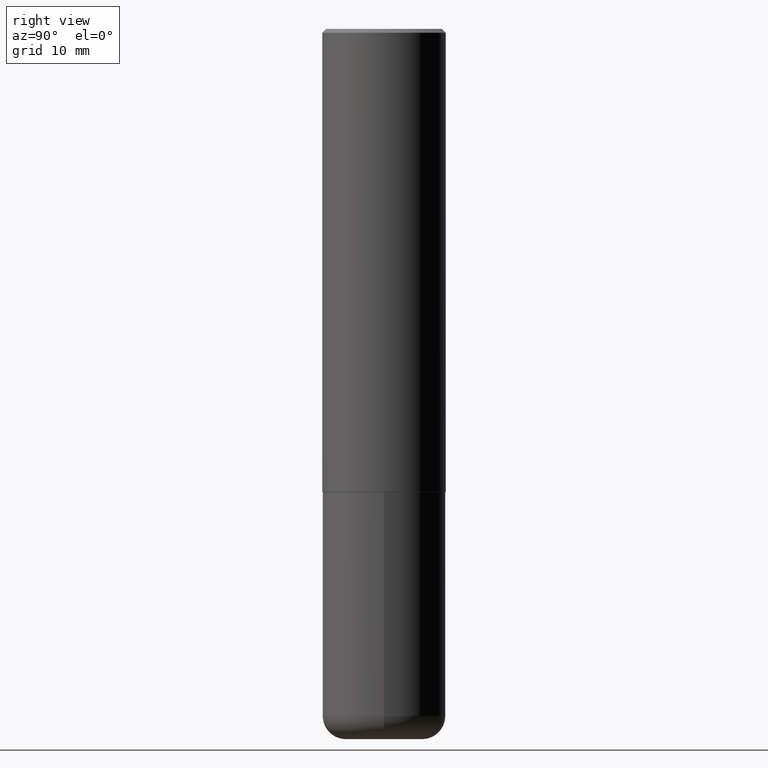
[diagram: clean part render]
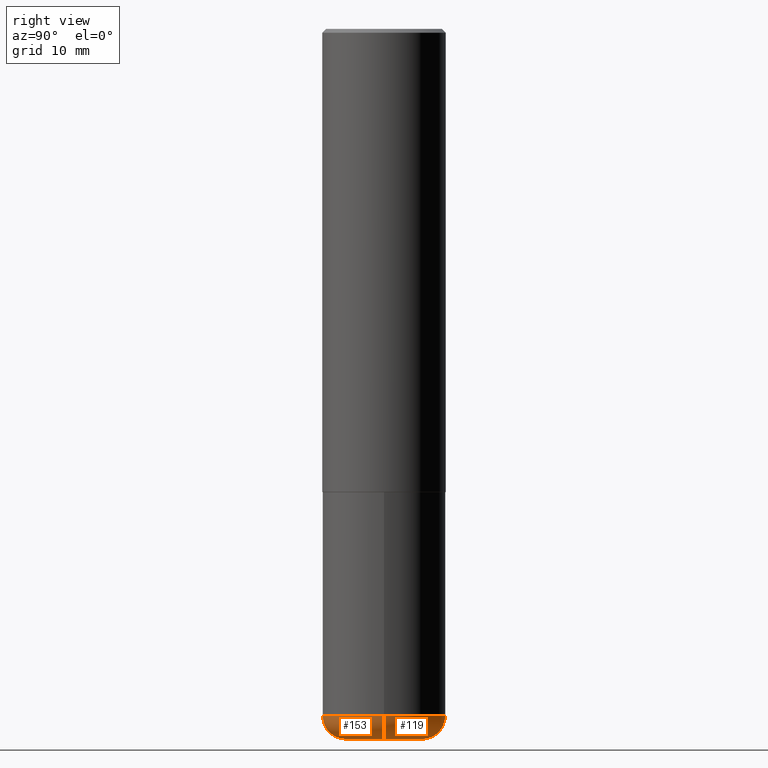
[diagram: same view with one multi-face feature highlighted, each face labeled with its STEP entity id]
A machine part, right view. The highlighted faces form ONE feature: a constant-radius fillet chain: 2 tangent blend faces with common blend radius 2.9997 mm. The faces share edges in the B-rep.
Their STEP definitions:
[1] entity #119 (Torus):
#12 = CARTESIAN_POINT ( 'NONE',  ( -0.1968500000000000250, -1.062169457542108922E-14, -3.622000000000000330 ) ) ;
#24 = AXIS2_PLACEMENT_3D ( 'NONE', #122, #286, #230 ) ;
#30 = CARTESIAN_POINT ( 'NONE',  ( 0.3149500000000001743, -1.443308555850978931E-14, -3.503899999999999793 ) ) ;
#32 = CIRCLE ( 'NONE', #284, 0.1181000000000002742 ) ;
#40 = CIRCLE ( 'NONE', #271, 0.1181000000000002742 ) ;
#52 = CIRCLE ( 'NONE', #24, 0.1968500000000000250 ) ;
#61 = DIRECTION ( 'NONE',  ( 1.000000000000000000, -6.982962677686269866E-15, 4.883557194083114022E-29 ) ) ;
#90 = DIRECTION ( 'NONE',  ( 7.105427357601001859E-15, 1.000000000000000000, -3.491481338843145583E-15 ) ) ;
#116 = DIRECTION ( 'NONE',  ( 1.000000000000000000, -6.982962677686263555E-15, 0.000000000000000000 ) ) ;
#118 = ORIENTED_EDGE ( 'NONE', *, *, #375, .F. ) ;
#119 = ADVANCED_FACE ( 'NONE', ( #233 ), #189, .T. ) ;
#122 = CARTESIAN_POINT ( 'NONE',  ( 8.857488016002565597E-29, -1.264614540928987357E-14, -3.622000000000000330 ) ) ;
#123 = EDGE_CURVE ( 'NONE', #228, #373, #52, .T. ) ;
#125 = CIRCLE ( 'NONE', #408, 0.3149500000000000077 ) ;
#182 = CARTESIAN_POINT ( 'NONE',  ( -0.3149500000000001743, -9.995947116896060296E-15, -3.503899999999999793 ) ) ;
#189 = TOROIDAL_SURFACE ( 'NONE', #349, 0.1968500000000000250, 0.1181000000000002881 ) ;
#208 = DIRECTION ( 'NONE',  ( -2.445468806185136597E-29, 3.491481338843145583E-15, 1.000000000000000000 ) ) ;
#228 = VERTEX_POINT ( 'NONE', #387 ) ;
#230 = DIRECTION ( 'NONE',  ( 1.000000000000000000, -6.982962677686267499E-15, 0.000000000000000000 ) ) ;
#233 = FACE_OUTER_BOUND ( 'NONE', #272, .T. ) ;
#264 = CARTESIAN_POINT ( 'NONE',  ( 8.568678149992099474E-29, -1.223380146317249786E-14, -3.503899999999999793 ) ) ;
#266 = VERTEX_POINT ( 'NONE', #182 ) ;
#271 = AXIS2_PLACEMENT_3D ( 'NONE', #276, #274, #341 ) ;
#272 = EDGE_LOOP ( 'NONE', ( #333, #382, #118, #323 ) ) ;
#273 = CARTESIAN_POINT ( 'NONE',  ( -0.1968500000000000250, -1.083509808782873928E-14, -3.503899999999999793 ) ) ;
#274 = DIRECTION ( 'NONE',  ( -6.982962677686266711E-15, -1.000000000000000000, 3.491481338843145583E-15 ) ) ;
#276 = CARTESIAN_POINT ( 'NONE',  ( 0.1968500000000000250, -1.360839766627503947E-14, -3.503899999999999793 ) ) ;
#282 = EDGE_CURVE ( 'NONE', #228, #299, #40, .T. ) ;
#284 = AXIS2_PLACEMENT_3D ( 'NONE', #273, #90, #339 ) ;
#286 = DIRECTION ( 'NONE',  ( -2.445468806185136597E-29, 3.491481338843145583E-15, 1.000000000000000000 ) ) ;
#299 = VERTEX_POINT ( 'NONE', #30 ) ;
#320 = EDGE_CURVE ( 'NONE', #373, #266, #32, .T. ) ;
#323 = ORIENTED_EDGE ( 'NONE', *, *, #282, .F. ) ;
#333 = ORIENTED_EDGE ( 'NONE', *, *, #123, .T. ) ;
#339 = DIRECTION ( 'NONE',  ( -1.000000000000000000, 7.105427357601003436E-15, 0.000000000000000000 ) ) ;
#341 = DIRECTION ( 'NONE',  ( 1.000000000000000000, -6.982962677686273021E-15, 0.000000000000000000 ) ) ;
#349 = AXIS2_PLACEMENT_3D ( 'NONE', #409, #208, #61 ) ;
#373 = VERTEX_POINT ( 'NONE', #12 ) ;
#375 = EDGE_CURVE ( 'NONE', #299, #266, #125, .T. ) ;
#382 = ORIENTED_EDGE ( 'NONE', *, *, #320, .T. ) ;
#387 = CARTESIAN_POINT ( 'NONE',  ( 0.1968500000000000250, -1.402074161239241518E-14, -3.622000000000000330 ) ) ;
#389 = DIRECTION ( 'NONE',  ( -2.445468806185136597E-29, 3.491481338843145583E-15, 1.000000000000000000 ) ) ;
#408 = AXIS2_PLACEMENT_3D ( 'NONE', #264, #389, #116 ) ;
#409 = CARTESIAN_POINT ( 'NONE',  ( 8.568678149992099474E-29, -1.223380146317249786E-14, -3.503899999999999793 ) ) ;
[2] entity #153 (Torus):
#7 = ORIENTED_EDGE ( 'NONE', *, *, #282, .T. ) ;
#12 = CARTESIAN_POINT ( 'NONE',  ( -0.1968500000000000250, -1.062169457542108922E-14, -3.622000000000000330 ) ) ;
#30 = CARTESIAN_POINT ( 'NONE',  ( 0.3149500000000001743, -1.443308555850978931E-14, -3.503899999999999793 ) ) ;
#32 = CIRCLE ( 'NONE', #284, 0.1181000000000002742 ) ;
#35 = DIRECTION ( 'NONE',  ( -2.445468806185136597E-29, 3.491481338843145583E-15, 1.000000000000000000 ) ) ;
#38 = CARTESIAN_POINT ( 'NONE',  ( 8.568678149992099474E-29, -1.223380146317249786E-14, -3.503899999999999793 ) ) ;
#40 = CIRCLE ( 'NONE', #271, 0.1181000000000002742 ) ;
#42 = CARTESIAN_POINT ( 'NONE',  ( 8.568678149992099474E-29, -1.223380146317249786E-14, -3.503899999999999793 ) ) ;
#62 = EDGE_CURVE ( 'NONE', #373, #228, #99, .T. ) ;
#68 = EDGE_CURVE ( 'NONE', #266, #299, #103, .T. ) ;
#90 = DIRECTION ( 'NONE',  ( 7.105427357601001859E-15, 1.000000000000000000, -3.491481338843145583E-15 ) ) ;
#91 = AXIS2_PLACEMENT_3D ( 'NONE', #42, #378, #108 ) ;
#92 = AXIS2_PLACEMENT_3D ( 'NONE', #38, #381, #315 ) ;
#99 = CIRCLE ( 'NONE', #324, 0.1968500000000000250 ) ;
#103 = CIRCLE ( 'NONE', #91, 0.3149500000000000077 ) ;
#108 = DIRECTION ( 'NONE',  ( 1.000000000000000000, -6.982962677686263555E-15, 0.000000000000000000 ) ) ;
#153 = ADVANCED_FACE ( 'NONE', ( #377 ), #401, .T. ) ;
#182 = CARTESIAN_POINT ( 'NONE',  ( -0.3149500000000001743, -9.995947116896060296E-15, -3.503899999999999793 ) ) ;
#194 = ORIENTED_EDGE ( 'NONE', *, *, #320, .F. ) ;
#228 = VERTEX_POINT ( 'NONE', #387 ) ;
#266 = VERTEX_POINT ( 'NONE', #182 ) ;
#271 = AXIS2_PLACEMENT_3D ( 'NONE', #276, #274, #341 ) ;
#273 = CARTESIAN_POINT ( 'NONE',  ( -0.1968500000000000250, -1.083509808782873928E-14, -3.503899999999999793 ) ) ;
#274 = DIRECTION ( 'NONE',  ( -6.982962677686266711E-15, -1.000000000000000000, 3.491481338843145583E-15 ) ) ;
#276 = CARTESIAN_POINT ( 'NONE',  ( 0.1968500000000000250, -1.360839766627503947E-14, -3.503899999999999793 ) ) ;
#282 = EDGE_CURVE ( 'NONE', #228, #299, #40, .T. ) ;
#284 = AXIS2_PLACEMENT_3D ( 'NONE', #273, #90, #339 ) ;
#291 = ORIENTED_EDGE ( 'NONE', *, *, #68, .F. ) ;
#296 = ORIENTED_EDGE ( 'NONE', *, *, #62, .T. ) ;
#299 = VERTEX_POINT ( 'NONE', #30 ) ;
#315 = DIRECTION ( 'NONE',  ( 1.000000000000000000, -6.982962677686269866E-15, 4.883557194083114022E-29 ) ) ;
#320 = EDGE_CURVE ( 'NONE', #373, #266, #32, .T. ) ;
#324 = AXIS2_PLACEMENT_3D ( 'NONE', #326, #35, #415 ) ;
#326 = CARTESIAN_POINT ( 'NONE',  ( 8.857488016002565597E-29, -1.264614540928987357E-14, -3.622000000000000330 ) ) ;
#339 = DIRECTION ( 'NONE',  ( -1.000000000000000000, 7.105427357601003436E-15, 0.000000000000000000 ) ) ;
#341 = DIRECTION ( 'NONE',  ( 1.000000000000000000, -6.982962677686273021E-15, 0.000000000000000000 ) ) ;
#373 = VERTEX_POINT ( 'NONE', #12 ) ;
#377 = FACE_OUTER_BOUND ( 'NONE', #383, .T. ) ;
#378 = DIRECTION ( 'NONE',  ( -2.445468806185136597E-29, 3.491481338843145583E-15, 1.000000000000000000 ) ) ;
#381 = DIRECTION ( 'NONE',  ( -2.445468806185136597E-29, 3.491481338843145583E-15, 1.000000000000000000 ) ) ;
#383 = EDGE_LOOP ( 'NONE', ( #194, #296, #7, #291 ) ) ;
#387 = CARTESIAN_POINT ( 'NONE',  ( 0.1968500000000000250, -1.402074161239241518E-14, -3.622000000000000330 ) ) ;
#401 = TOROIDAL_SURFACE ( 'NONE', #92, 0.1968500000000000250, 0.1181000000000002881 ) ;
#415 = DIRECTION ( 'NONE',  ( 1.000000000000000000, -6.982962677686267499E-15, 0.000000000000000000 ) ) ;